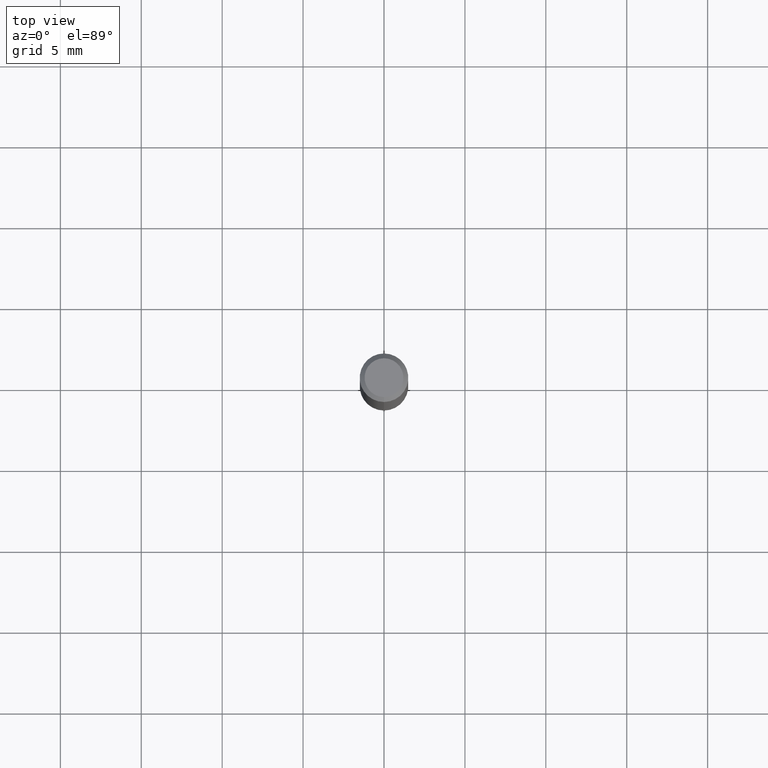
[diagram: clean part render]
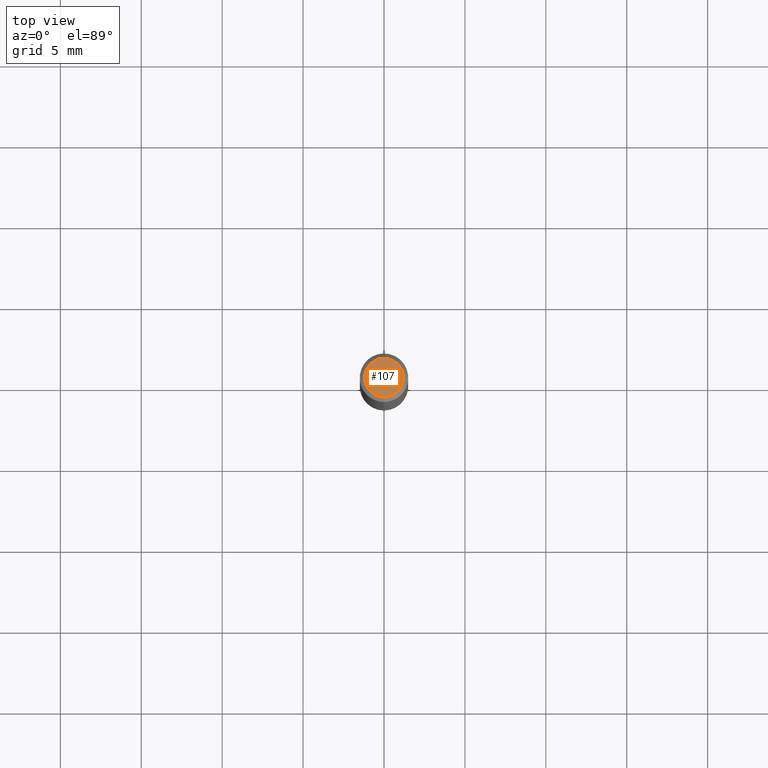
[diagram: same view with one face highlighted and labeled with its STEP entity id]
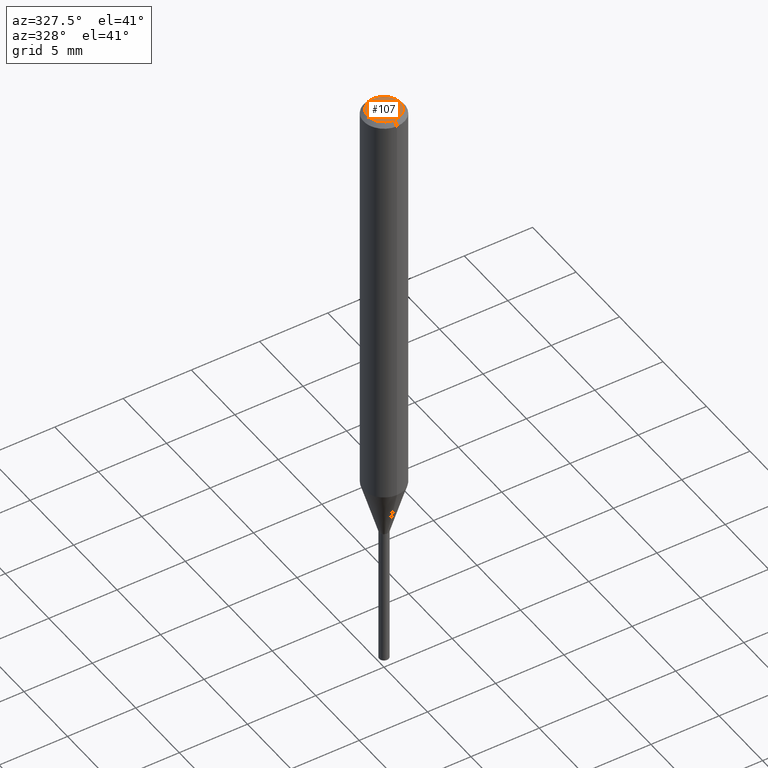
[diagram: same view with one face highlighted and labeled with its STEP entity id]
A machine part, top view. The second image highlights one B-rep face of the part: STEP entity #107.
A second angle (auxiliary view) of the same face is appended — the face is thin or edge-on in the first view.
In plain terms, the highlighted planar face has unit normal (-0, 0, 1).
Its self-contained STEP definition (entity closure, byte-faithful):
#103=VERTEX_POINT('',#239);
#107=ADVANCED_FACE('',(#244),#245,.T.);
#121=EDGE_CURVE('',#103,#183,#262,.T.);
#123=EDGE_CURVE('',#183,#103,#264,.T.);
#183=VERTEX_POINT('',#330);
#239=CARTESIAN_POINT('',(0.0,1.2,0.0));
#244=FACE_OUTER_BOUND('',#388,.T.);
#245=PLANE('',#389);
#262=CIRCLE('',#410,1.2);
#264=CIRCLE('',#413,1.2);
#330=CARTESIAN_POINT('',(1.46952762458685E-016,-1.2,0.0));
#388=EDGE_LOOP('',(#556,#557));
#389=AXIS2_PLACEMENT_3D('',#558,#559,#560);
#410=AXIS2_PLACEMENT_3D('',#589,#590,#591);
#413=AXIS2_PLACEMENT_3D('',#592,#593,#594);
#556=ORIENTED_EDGE('',*,*,#121,.F.);
#557=ORIENTED_EDGE('',*,*,#123,.F.);
#558=CARTESIAN_POINT('',(0.0,0.6,0.0));
#559=DIRECTION('',(-0.0,0.0,1.0));
#560=DIRECTION('',(0.0,-1.0,0.0));
#589=CARTESIAN_POINT('',(0.0,0.0,0.0));
#590=DIRECTION('',(0.0,0.0,-1.0));
#591=DIRECTION('',(0.0,1.0,0.0));
#592=CARTESIAN_POINT('',(0.0,0.0,0.0));
#593=DIRECTION('',(0.0,0.0,-1.0));
#594=DIRECTION('',(0.0,1.0,0.0));